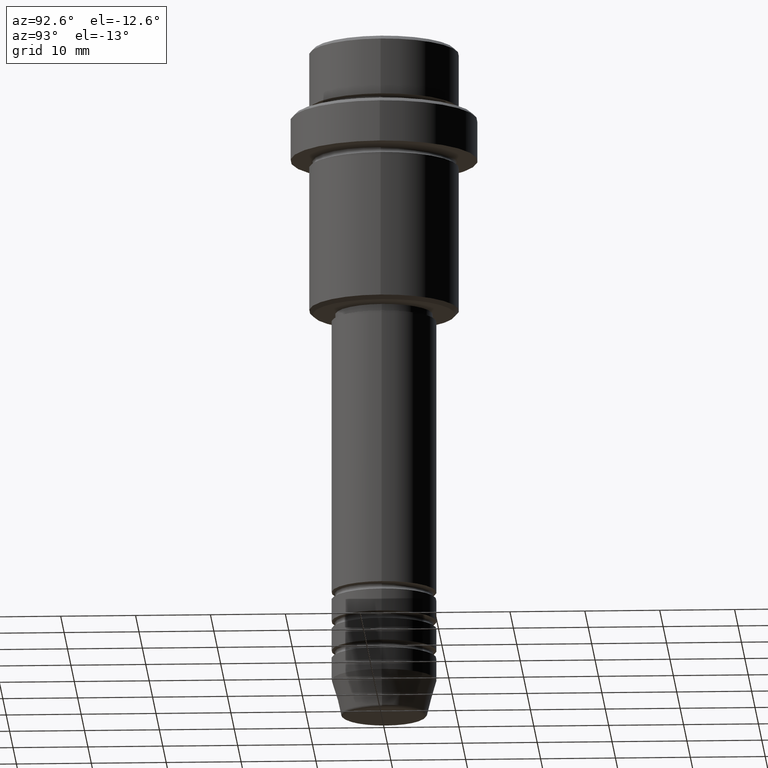
[diagram: clean part render]
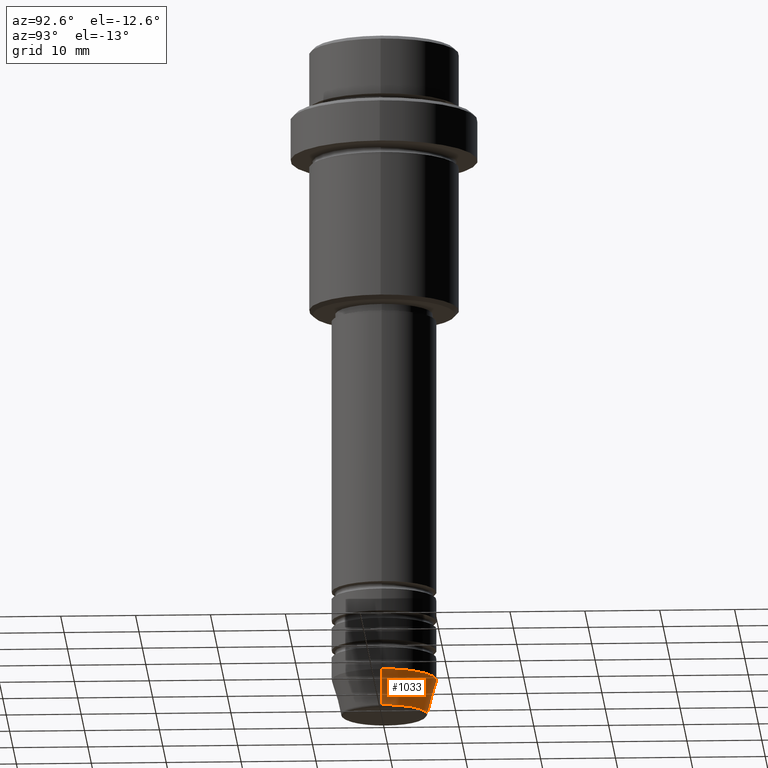
[diagram: same view with one face highlighted and labeled with its STEP entity id]
A machine part, auxiliary view. The second image highlights one B-rep face of the part: STEP entity #1033.
In plain terms, the highlighted conical surface has half-angle 15 deg.
Its self-contained STEP definition (entity closure, byte-faithful):
#17 = VECTOR ( 'NONE', #1193, 1000.000000000000000 ) ;
#61 = ORIENTED_EDGE ( 'NONE', *, *, #957, .F. ) ;
#62 = CARTESIAN_POINT ( 'NONE',  ( 0.000000000000000000, 0.000000000000000000, -86.00000000000000000 ) ) ;
#68 = DIRECTION ( 'NONE',  ( -0.000000000000000000, -0.000000000000000000, 1.000000000000000000 ) ) ;
#152 = CARTESIAN_POINT ( 'NONE',  ( 5.759553456999433330, 0.000000000000000000, -90.62940952255125637 ) ) ;
#159 = FACE_OUTER_BOUND ( 'NONE', #749, .T. ) ;
#161 = AXIS2_PLACEMENT_3D ( 'NONE', #62, #816, #1257 ) ;
#176 = ORIENTED_EDGE ( 'NONE', *, *, #371, .T. ) ;
#219 = CARTESIAN_POINT ( 'NONE',  ( -7.000000000000000000, 8.572527594031473190E-16, -86.00000000000000000 ) ) ;
#235 = CARTESIAN_POINT ( 'NONE',  ( 0.000000000000000000, 0.000000000000000000, -90.62940952255125637 ) ) ;
#276 = VERTEX_POINT ( 'NONE', #152 ) ;
#330 = LINE ( 'NONE', #219, #919 ) ;
#371 = EDGE_CURVE ( 'NONE', #276, #1057, #1135, .T. ) ;
#404 = DIRECTION ( 'NONE',  ( -0.2588190451025213501, 3.169619151431772337E-17, 0.9659258262890680902 ) ) ;
#502 = CIRCLE ( 'NONE', #685, 7.000000000000000000 ) ;
#591 = AXIS2_PLACEMENT_3D ( 'NONE', #235, #1312, #1260 ) ;
#673 = VERTEX_POINT ( 'NONE', #1022 ) ;
#685 = AXIS2_PLACEMENT_3D ( 'NONE', #860, #68, #725 ) ;
#725 = DIRECTION ( 'NONE',  ( 1.000000000000000000, 0.000000000000000000, 0.000000000000000000 ) ) ;
#749 = EDGE_LOOP ( 'NONE', ( #176, #1174, #1246, #61 ) ) ;
#761 = LINE ( 'NONE', #1309, #17 ) ;
#765 = VERTEX_POINT ( 'NONE', #1383 ) ;
#799 = CARTESIAN_POINT ( 'NONE',  ( -5.759553456999433330, 7.812973149831950787E-16, -90.62940952255125637 ) ) ;
#816 = DIRECTION ( 'NONE',  ( -0.000000000000000000, -0.000000000000000000, 1.000000000000000000 ) ) ;
#860 = CARTESIAN_POINT ( 'NONE',  ( 0.000000000000000000, 0.000000000000000000, -86.00000000000000000 ) ) ;
#919 = VECTOR ( 'NONE', #404, 1000.000000000000000 ) ;
#957 = EDGE_CURVE ( 'NONE', #276, #673, #761, .T. ) ;
#1022 = CARTESIAN_POINT ( 'NONE',  ( 7.000000000000000000, 0.000000000000000000, -86.00000000000000000 ) ) ;
#1033 = ADVANCED_FACE ( 'NONE', ( #159 ), #1181, .T. ) ;
#1057 = VERTEX_POINT ( 'NONE', #799 ) ;
#1135 = CIRCLE ( 'NONE', #591, 5.759553456999433330 ) ;
#1165 = EDGE_CURVE ( 'NONE', #673, #765, #502, .T. ) ;
#1174 = ORIENTED_EDGE ( 'NONE', *, *, #1231, .T. ) ;
#1181 = CONICAL_SURFACE ( 'NONE', #161, 7.000000000000000000, 0.2617993877991500740 ) ;
#1193 = DIRECTION ( 'NONE',  ( 0.2588190451025213501, 0.000000000000000000, 0.9659258262890680902 ) ) ;
#1231 = EDGE_CURVE ( 'NONE', #1057, #765, #330, .T. ) ;
#1246 = ORIENTED_EDGE ( 'NONE', *, *, #1165, .F. ) ;
#1257 = DIRECTION ( 'NONE',  ( 1.000000000000000000, 0.000000000000000000, 0.000000000000000000 ) ) ;
#1260 = DIRECTION ( 'NONE',  ( 1.000000000000000000, 0.000000000000000000, 0.000000000000000000 ) ) ;
#1309 = CARTESIAN_POINT ( 'NONE',  ( 7.000000000000000000, 0.000000000000000000, -86.00000000000000000 ) ) ;
#1312 = DIRECTION ( 'NONE',  ( -0.000000000000000000, -0.000000000000000000, 1.000000000000000000 ) ) ;
#1383 = CARTESIAN_POINT ( 'NONE',  ( -7.000000000000000000, 8.572527594031473190E-16, -86.00000000000000000 ) ) ;